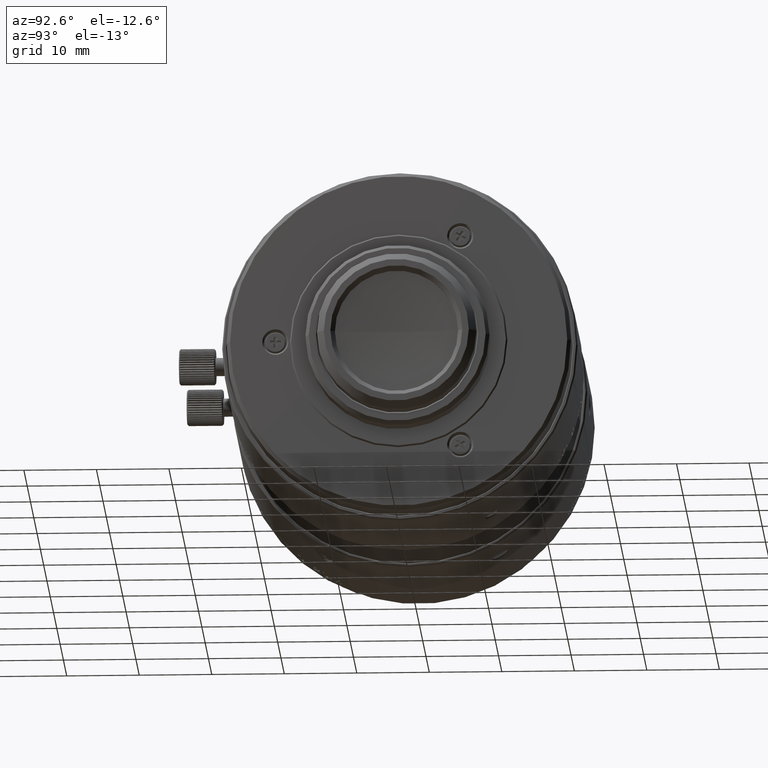
[diagram: clean part render]
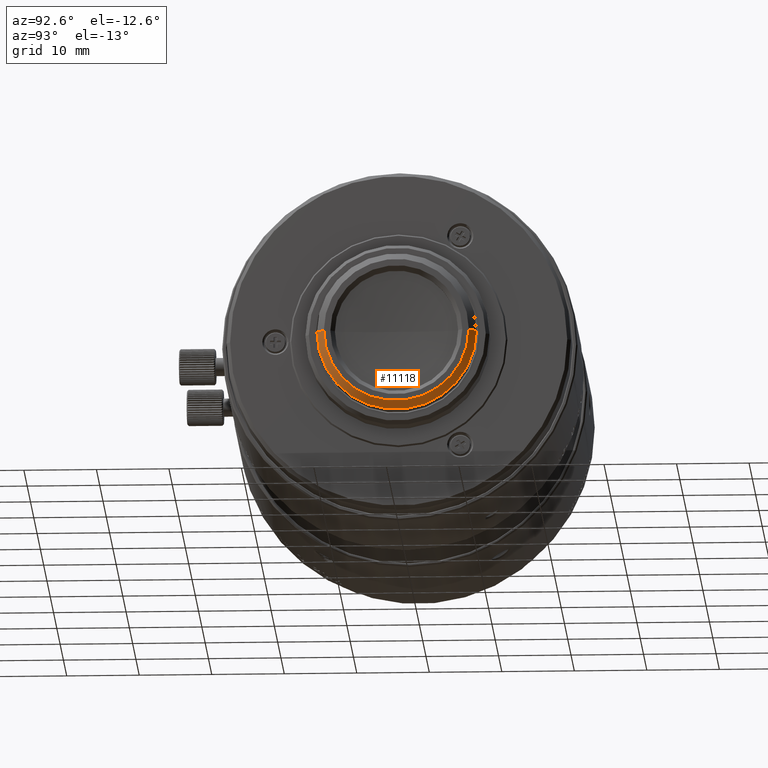
[diagram: same view with one face highlighted and labeled with its STEP entity id]
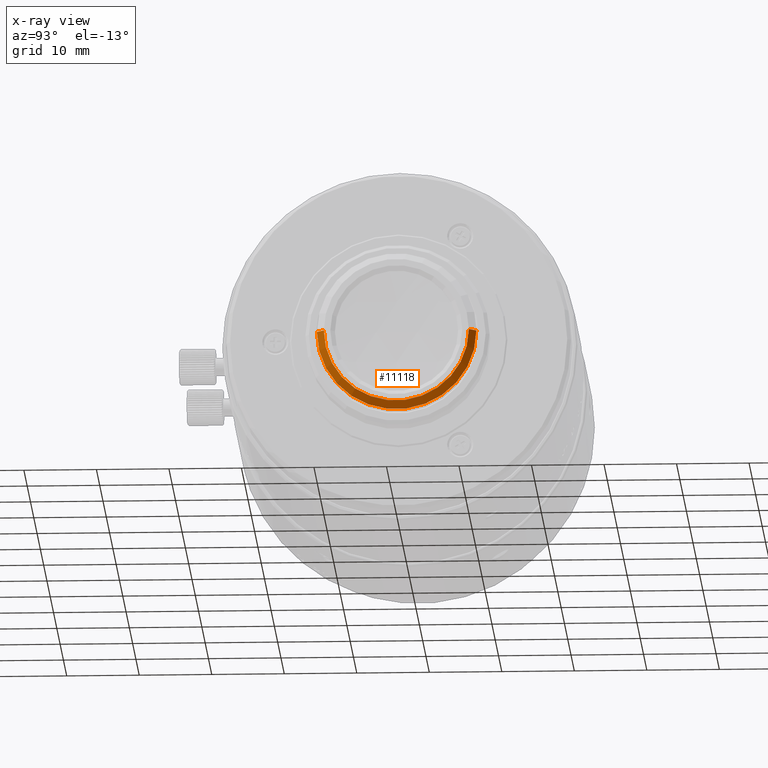
[diagram: x-ray of the same camera — body ghosted, the highlighted face saturated]
A machine part, auxiliary view. The second image highlights one B-rep face of the part: STEP entity #11118.
The next image is the same camera in x-ray: the body ghosted, the highlighted face saturated — about 0% of this face is hidden behind the body in this view.
In plain terms, the highlighted conical surface has half-angle 45 deg.
Its self-contained STEP definition (entity closure, byte-faithful):
#9031 = CIRCLE ( 'NONE', #85170, 11.00000000000000000 ) ;
#9136 = AXIS2_PLACEMENT_3D ( 'NONE', #53008, #74758, #95773 ) ;
#9833 = EDGE_LOOP ( 'NONE', ( #34301, #115482, #75856, #92871 ) ) ;
#11118 = ADVANCED_FACE ( 'NONE', ( #130635 ), #59309, .T. ) ;
#11352 = VERTEX_POINT ( 'NONE', #57324 ) ;
#15656 = CARTESIAN_POINT ( 'NONE',  ( -0.9270399999999999752, -11.00000000000000000, 0.000000000000000000 ) ) ;
#15947 = CARTESIAN_POINT ( 'NONE',  ( -0.9270400000002000374, 0.000000000000000000, -2.771116669463999955E-13 ) ) ;
#19636 = CARTESIAN_POINT ( 'NONE',  ( -0.9270399999999999752, 11.00000000000000000, 0.000000000000000000 ) ) ;
#24594 = CARTESIAN_POINT ( 'NONE',  ( 0.07295999999985000595, 10.00000000000000000, 0.000000000000000000 ) ) ;
#27024 = CIRCLE ( 'NONE', #9136, 10.00000000000000000 ) ;
#28516 = DIRECTION ( 'NONE',  ( 0.000000000000000000, 1.000000000000000000, 2.486764631073999726E-14 ) ) ;
#34301 = ORIENTED_EDGE ( 'NONE', *, *, #90208, .T. ) ;
#37422 = VERTEX_POINT ( 'NONE', #111004 ) ;
#45290 = VERTEX_POINT ( 'NONE', #19636 ) ;
#47470 = CARTESIAN_POINT ( 'NONE',  ( 0.07295999999994999541, 10.00000000000000000, 0.000000000000000000 ) ) ;
#48172 = DIRECTION ( 'NONE',  ( -0.7071067811865474617, 0.7071067811865474617, 0.000000000000000000 ) ) ;
#53008 = CARTESIAN_POINT ( 'NONE',  ( 0.07295999999985999795, 0.000000000000000000, -2.522426711947999726E-13 ) ) ;
#54602 = EDGE_CURVE ( 'NONE', #37422, #11352, #87916, .T. ) ;
#55568 = DIRECTION ( 'NONE',  ( 0.000000000000000000, 1.000000000000000000, 2.520734943530000280E-14 ) ) ;
#57324 = CARTESIAN_POINT ( 'NONE',  ( 0.07295999999986998996, -10.00000000000000000, 0.000000000000000000 ) ) ;
#59309 = CONICAL_SURFACE ( 'NONE', #135420, 10.50000000000000000, 0.7853981633972997312 ) ;
#64705 = CARTESIAN_POINT ( 'NONE',  ( -0.4270400000001000063, 0.000000000000000000, -2.646771690706000093E-13 ) ) ;
#65446 = VERTEX_POINT ( 'NONE', #24594 ) ;
#67537 = DIRECTION ( 'NONE',  ( 0.7071067811865474617, 0.7071067811865474617, 0.000000000000000000 ) ) ;
#67826 = LINE ( 'NONE', #47470, #114977 ) ;
#74758 = DIRECTION ( 'NONE',  ( -1.000000000000000000, 6.273021918315720375E-28, -2.486899575160000081E-14 ) ) ;
#75856 = ORIENTED_EDGE ( 'NONE', *, *, #89288, .F. ) ;
#85170 = AXIS2_PLACEMENT_3D ( 'NONE', #15947, #135801, #28516 ) ;
#87916 = LINE ( 'NONE', #15656, #93852 ) ;
#89288 = EDGE_CURVE ( 'NONE', #45290, #37422, #9031, .T. ) ;
#90208 = EDGE_CURVE ( 'NONE', #65446, #11352, #27024, .T. ) ;
#92871 = ORIENTED_EDGE ( 'NONE', *, *, #95074, .F. ) ;
#93852 = VECTOR ( 'NONE', #67537, 1000.000000000000114 ) ;
#95074 = EDGE_CURVE ( 'NONE', #65446, #45290, #67826, .T. ) ;
#95773 = DIRECTION ( 'NONE',  ( 0.000000000000000000, 1.000000000000000000, 2.522426711947999600E-14 ) ) ;
#111004 = CARTESIAN_POINT ( 'NONE',  ( -0.9270399999999999752, -11.00000000000000000, 0.000000000000000000 ) ) ;
#114977 = VECTOR ( 'NONE', #48172, 1000.000000000000114 ) ;
#115482 = ORIENTED_EDGE ( 'NONE', *, *, #54602, .F. ) ;
#130635 = FACE_OUTER_BOUND ( 'NONE', #9833, .T. ) ;
#135420 = AXIS2_PLACEMENT_3D ( 'NONE', #64705, #138394, #55568 ) ;
#135801 = DIRECTION ( 'NONE',  ( -1.000000000000000000, 6.184333904540849923E-28, -2.486899575160000081E-14 ) ) ;
#138394 = DIRECTION ( 'NONE',  ( -1.000000000000000000, 6.268814660155720321E-28, -2.486899575160000081E-14 ) ) ;